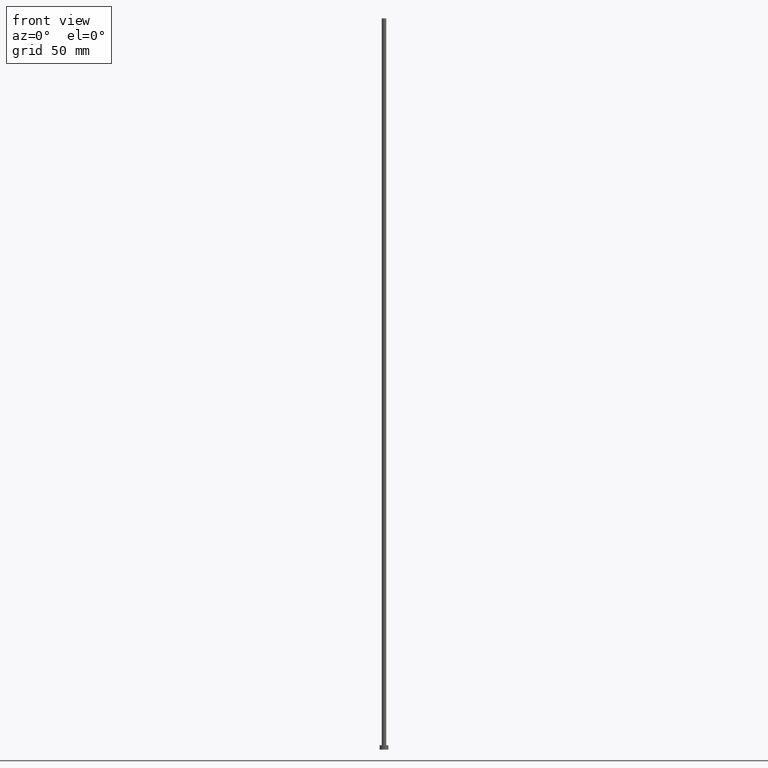
[diagram: clean part render]
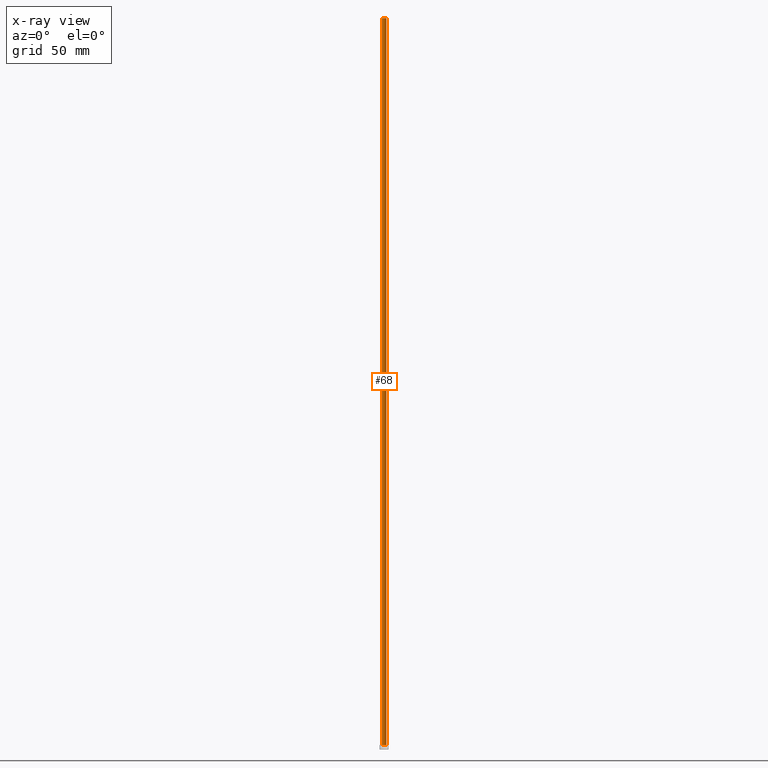
[diagram: x-ray — body ghosted, one internal face saturated and labeled with its STEP entity id]
A machine part, front view, then the same camera in x-ray: the body is ghosted and one INTERNAL B-rep face — a face not visible from any outside direction — is saturated and labeled: STEP entity #68.
In plain terms, the highlighted cylindrical surface (edge-blend (fillet) strip) has radius 1.5 mm, axis along (-0, -0, -1).
Its self-contained STEP definition (entity closure, byte-faithful):
#4 = LINE ( 'NONE', #91, #53 ) ;
#10 = EDGE_CURVE ( 'NONE', #43, #117, #84, .T. ) ;
#19 = VERTEX_POINT ( 'NONE', #101 ) ;
#20 = CIRCLE ( 'NONE', #171, 1.500000000000000222 ) ;
#25 = EDGE_CURVE ( 'NONE', #43, #136, #4, .T. ) ;
#26 = FACE_OUTER_BOUND ( 'NONE', #75, .T. ) ;
#29 = CARTESIAN_POINT ( 'NONE',  ( 1.500000000000000222, 1.836970198721029934E-16, 3.000000000000000000 ) ) ;
#31 = CARTESIAN_POINT ( 'NONE',  ( 0.000000000000000000, 0.000000000000000000, 500.0000000000000000 ) ) ;
#40 = AXIS2_PLACEMENT_3D ( 'NONE', #155, #215, #80 ) ;
#43 = VERTEX_POINT ( 'NONE', #63 ) ;
#51 = LINE ( 'NONE', #221, #169 ) ;
#53 = VECTOR ( 'NONE', #167, 1000.000000000000000 ) ;
#63 = CARTESIAN_POINT ( 'NONE',  ( 1.500000000000000222, 1.836970198721029934E-16, 500.0000000000000000 ) ) ;
#68 = ADVANCED_FACE ( 'NONE', ( #26 ), #145, .T. ) ;
#74 = EDGE_CURVE ( 'NONE', #117, #19, #51, .T. ) ;
#75 = EDGE_LOOP ( 'NONE', ( #175, #211, #153, #228 ) ) ;
#80 = DIRECTION ( 'NONE',  ( 1.000000000000000000, 0.000000000000000000, 0.000000000000000000 ) ) ;
#84 = CIRCLE ( 'NONE', #40, 1.500000000000000222 ) ;
#91 = CARTESIAN_POINT ( 'NONE',  ( 1.500000000000000222, 1.836970198721029934E-16, 500.0000000000000000 ) ) ;
#101 = CARTESIAN_POINT ( 'NONE',  ( -1.500000000000000222, 0.000000000000000000, 3.000000000000000000 ) ) ;
#103 = CARTESIAN_POINT ( 'NONE',  ( -1.500000000000000222, 0.000000000000000000, 500.0000000000000000 ) ) ;
#117 = VERTEX_POINT ( 'NONE', #103 ) ;
#125 = DIRECTION ( 'NONE',  ( 0.000000000000000000, 0.000000000000000000, 1.000000000000000000 ) ) ;
#136 = VERTEX_POINT ( 'NONE', #29 ) ;
#144 = DIRECTION ( 'NONE',  ( -0.000000000000000000, -0.000000000000000000, -1.000000000000000000 ) ) ;
#145 = CYLINDRICAL_SURFACE ( 'NONE', #213, 1.500000000000000222 ) ;
#153 = ORIENTED_EDGE ( 'NONE', *, *, #224, .T. ) ;
#155 = CARTESIAN_POINT ( 'NONE',  ( 0.000000000000000000, 0.000000000000000000, 500.0000000000000000 ) ) ;
#167 = DIRECTION ( 'NONE',  ( -0.000000000000000000, -0.000000000000000000, -1.000000000000000000 ) ) ;
#169 = VECTOR ( 'NONE', #185, 1000.000000000000000 ) ;
#171 = AXIS2_PLACEMENT_3D ( 'NONE', #219, #125, #202 ) ;
#175 = ORIENTED_EDGE ( 'NONE', *, *, #10, .F. ) ;
#185 = DIRECTION ( 'NONE',  ( -0.000000000000000000, -0.000000000000000000, -1.000000000000000000 ) ) ;
#202 = DIRECTION ( 'NONE',  ( 1.000000000000000000, 0.000000000000000000, 0.000000000000000000 ) ) ;
#211 = ORIENTED_EDGE ( 'NONE', *, *, #25, .T. ) ;
#213 = AXIS2_PLACEMENT_3D ( 'NONE', #31, #144, #237 ) ;
#215 = DIRECTION ( 'NONE',  ( 0.000000000000000000, 0.000000000000000000, 1.000000000000000000 ) ) ;
#219 = CARTESIAN_POINT ( 'NONE',  ( 0.000000000000000000, 0.000000000000000000, 3.000000000000000000 ) ) ;
#221 = CARTESIAN_POINT ( 'NONE',  ( -1.500000000000000222, 0.000000000000000000, 500.0000000000000000 ) ) ;
#224 = EDGE_CURVE ( 'NONE', #136, #19, #20, .T. ) ;
#228 = ORIENTED_EDGE ( 'NONE', *, *, #74, .F. ) ;
#237 = DIRECTION ( 'NONE',  ( -1.000000000000000000, 0.000000000000000000, 0.000000000000000000 ) ) ;